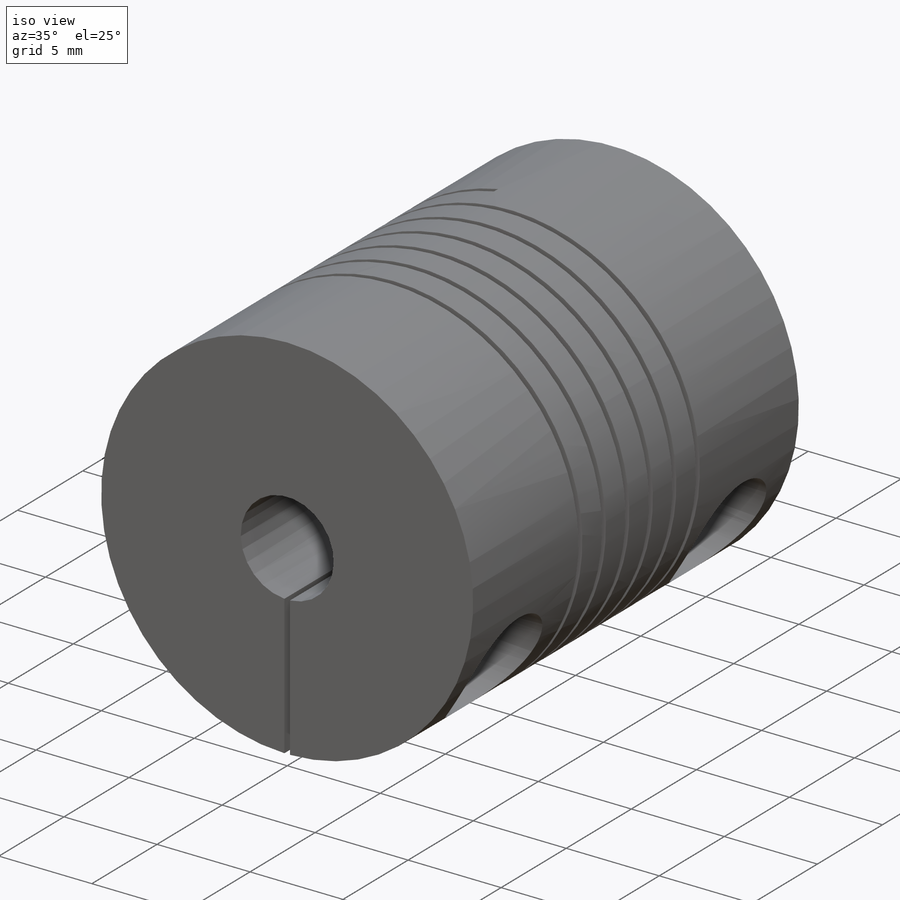
[diagram: iso view]
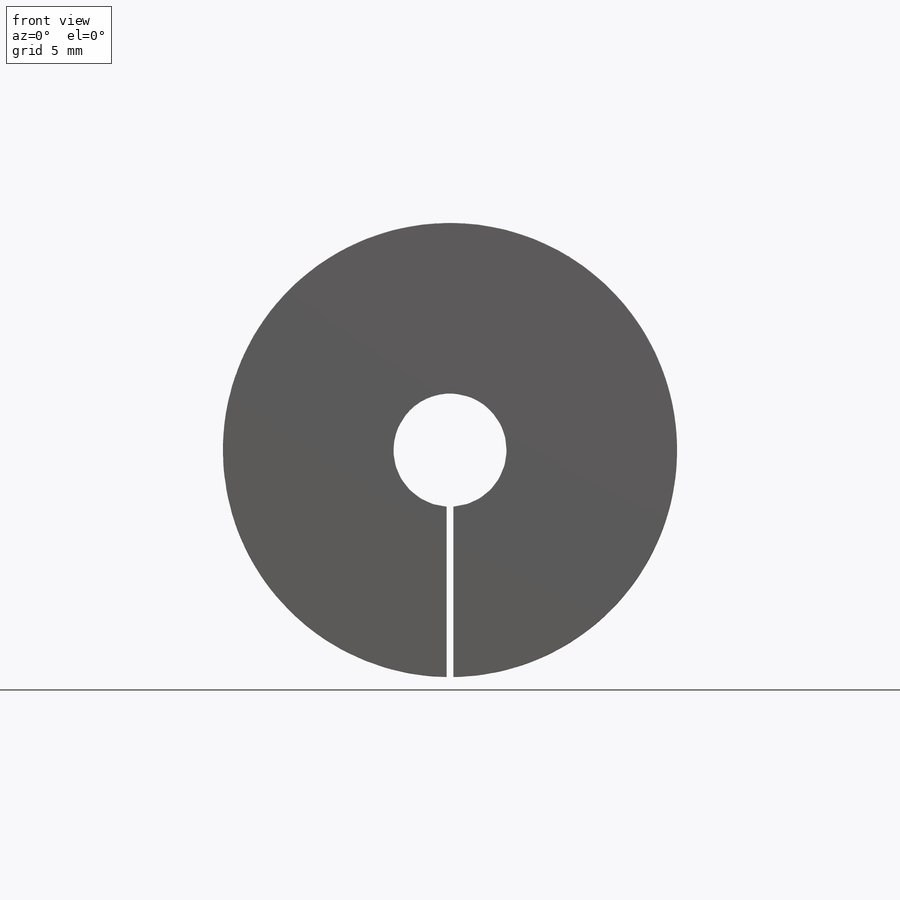
[diagram: front view]
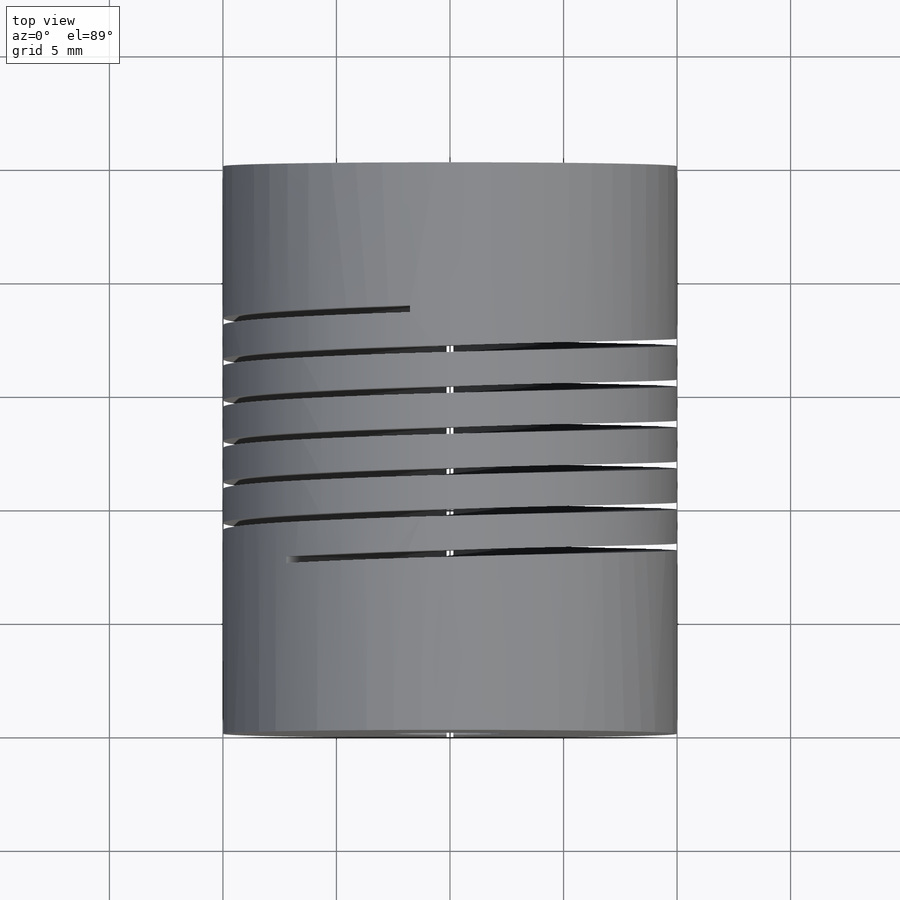
[diagram: top view]
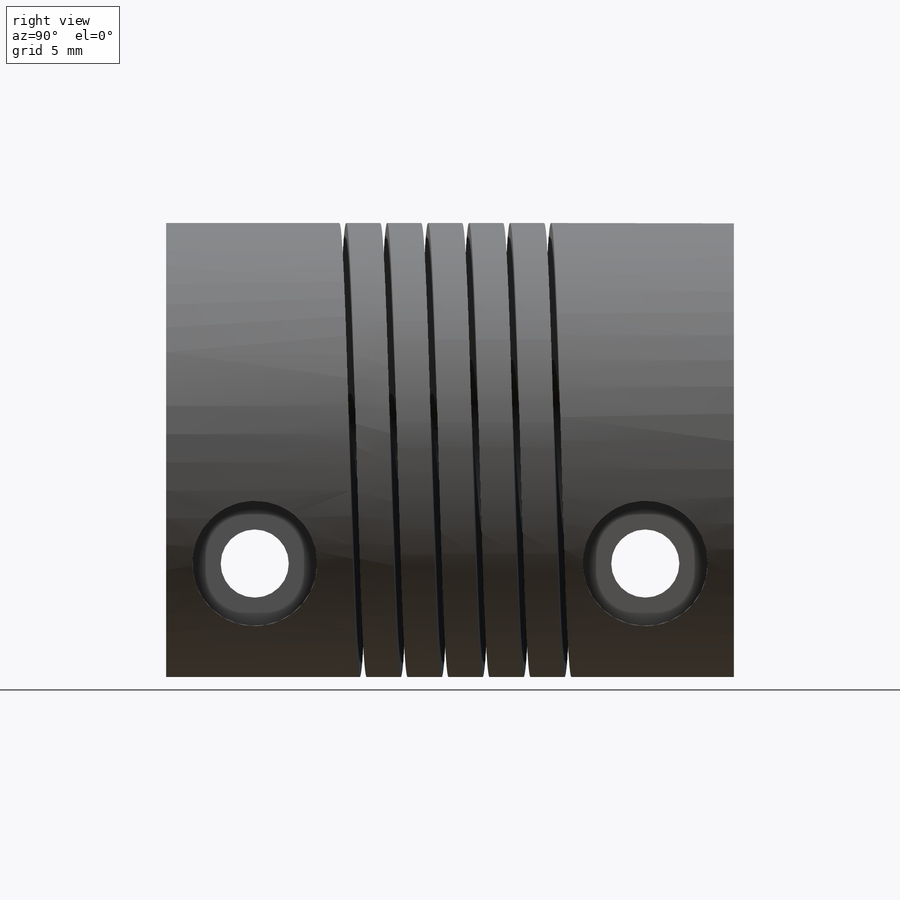
[diagram: right view]
SOLIDWORKS PART (.sldprt)
format: sldprt  version: not decoded by parser v0  size: 674,304 bytes
history: native  units: mm
features: sketch x8, cut_extrude x5, plane x3, fillet x2, material x1, extrude x1, helix x1, sweep x1 (+13 scaffold rows collapsed)
feature tree (35):
  scaffold x13  (default folders/planes/origin — collapsed)
  material  "Material <not specified>"
  sketch  "Sketch1"  dims[D1=20.0mm]
  extrude  "Boss-Extrude1"  Depth=25mm
  sketch  "Sketch2"  dims[D1=5.0mm]
  cut_extrude  "Cut-Extrude1"  Depth=12.5mm
  sketch  "Sketch3"  dims[D1=8.0mm]
  cut_extrude  "Cut-Extrude2"  Depth=12.5mm
  plane  "Plane1"  Offset=7.25mm
  sketch  "Sketch4"  dims[D1=22.5mm]
  helix  "Helix/Spiral1"  Pitch=11.0044mm
  plane  "Plane2"
  sketch  "Sketch5"  dims[D1=11.41mm D2=15.4mm D3=0.3mm D4=~0.242555mm]
  sweep  "Cut-Sweep2"
  sketch  "Sketch6"  dims[D1=0.3mm]
  cut_extrude  "Cut-Extrude3"  Depth=12.5mm
  plane  "Plane3"  Offset=10mm
  sketch  "Sketch8"  dims[D1=3.0mm D2=5.0mm D3=3.9mm D4=3.9mm]
  cut_extrude  "Cut-Extrude4"  [1 undecoded]
  sketch  "Sketch10"  dims[D1=1.25mm D2=1.25mm]
  cut_extrude  "Cut-Extrude6"  Depth=6mm
  fillet  "Fillet1"  Radius=0.15mm
  fillet  "Fillet2"  Radius=0.15mm
decode coverage: 16 of 18 modeling features carry decoded parameters
note: ~ marks probable driven/reference dimensions
note: 1 parameter value undecoded
note: suppression state not decoded; provenance and decode notes live in map.json
